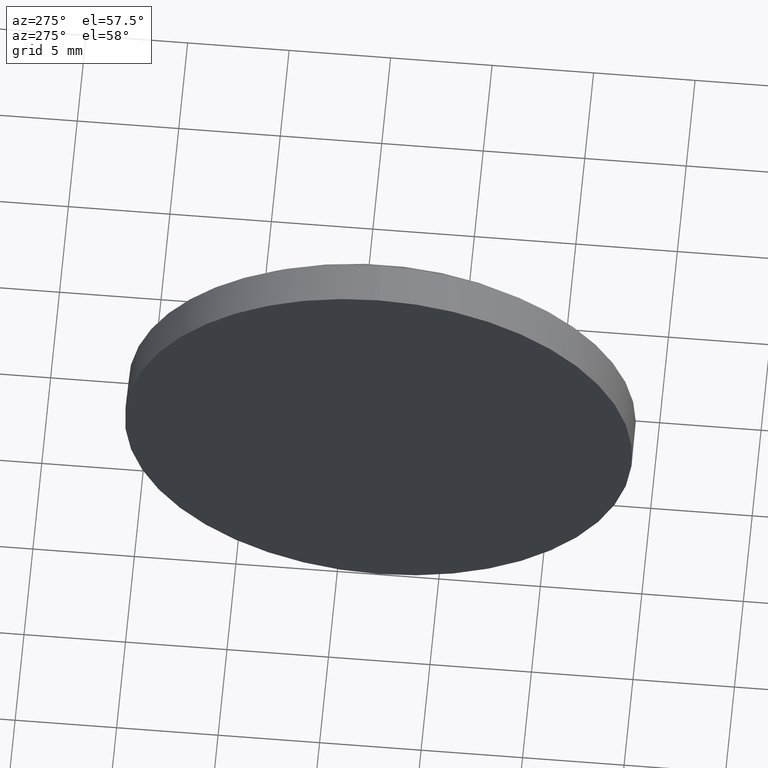
[diagram: clean part render]
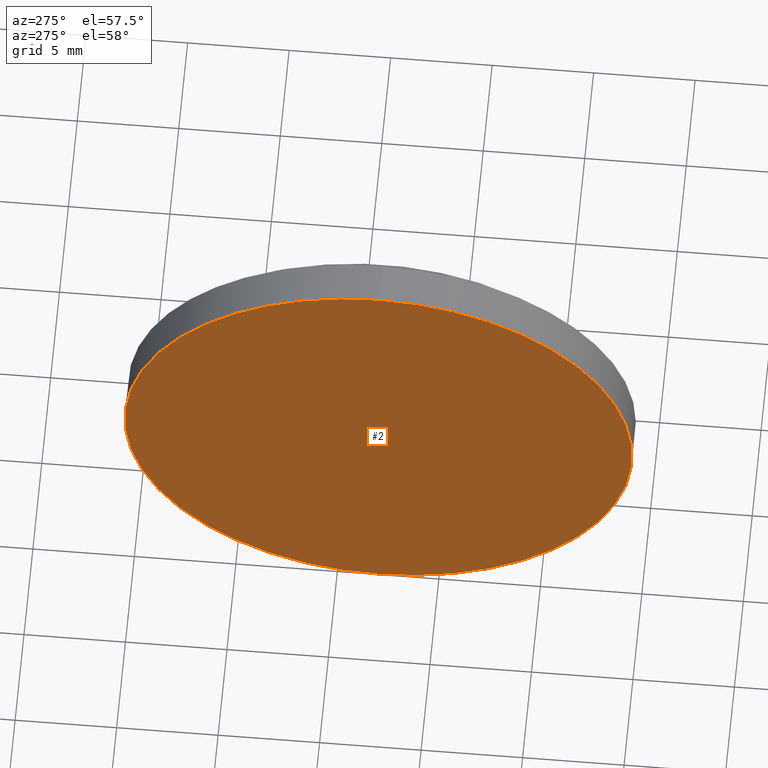
[diagram: same view with one face highlighted and labeled with its STEP entity id]
A machine part, auxiliary view. The second image highlights one B-rep face of the part: STEP entity #2.
In plain terms, the highlighted planar face has unit normal (1, 0, 0).
Its self-contained STEP definition (entity closure, byte-faithful):
#2 = ADVANCED_FACE ( 'NONE', ( #102 ), #83, .F. ) ;
#20 = DIRECTION ( 'NONE',  ( -1.000000000000000000, -0.0000000000000000000, -0.0000000000000000000 ) ) ;
#38 = ORIENTED_EDGE ( 'NONE', *, *, #103, .T. ) ;
#44 = CARTESIAN_POINT ( 'NONE',  ( 634.6865859254612600, 47.94655312557324600, 0.0000000000000000000 ) ) ;
#70 = CARTESIAN_POINT ( 'NONE',  ( 634.6865859254612600, 47.94655312557324600, 0.0000000000000000000 ) ) ;
#78 = DIRECTION ( 'NONE',  ( 0.0000000000000000000, 0.0000000000000000000, 1.000000000000000000 ) ) ;
#83 = PLANE ( 'NONE',  #86 ) ;
#84 = ORIENTED_EDGE ( 'NONE', *, *, #116, .T. ) ;
#86 = AXIS2_PLACEMENT_3D ( 'NONE', #44, #98, #100 ) ;
#90 = CIRCLE ( 'NONE', #156, 12.49999999999999600 ) ;
#91 = DIRECTION ( 'NONE',  ( 0.0000000000000000000, 0.0000000000000000000, 1.000000000000000000 ) ) ;
#98 = DIRECTION ( 'NONE',  ( 1.000000000000000000, 0.0000000000000000000, 0.0000000000000000000 ) ) ;
#100 = DIRECTION ( 'NONE',  ( 0.0000000000000000000, 0.0000000000000000000, -1.000000000000000000 ) ) ;
#102 = FACE_OUTER_BOUND ( 'NONE', #109, .T. ) ;
#103 = EDGE_CURVE ( 'NONE', #137, #152, #134, .T. ) ;
#109 = EDGE_LOOP ( 'NONE', ( #38, #84 ) ) ;
#116 = EDGE_CURVE ( 'NONE', #152, #137, #90, .T. ) ;
#121 = DIRECTION ( 'NONE',  ( -1.000000000000000000, -0.0000000000000000000, -0.0000000000000000000 ) ) ;
#134 = CIRCLE ( 'NONE', #136, 12.49999999999999600 ) ;
#136 = AXIS2_PLACEMENT_3D ( 'NONE', #139, #20, #91 ) ;
#137 = VERTEX_POINT ( 'NONE', #169 ) ;
#139 = CARTESIAN_POINT ( 'NONE',  ( 634.6865859254612600, 47.94655312557324600, 0.0000000000000000000 ) ) ;
#152 = VERTEX_POINT ( 'NONE', #172 ) ;
#156 = AXIS2_PLACEMENT_3D ( 'NONE', #70, #121, #78 ) ;
#169 = CARTESIAN_POINT ( 'NONE',  ( 634.6865859254612600, 47.94655312557324600, 12.49999999999999600 ) ) ;
#172 = CARTESIAN_POINT ( 'NONE',  ( 634.6865859254612600, 47.94655312557324600, -12.49999999999999600 ) ) ;